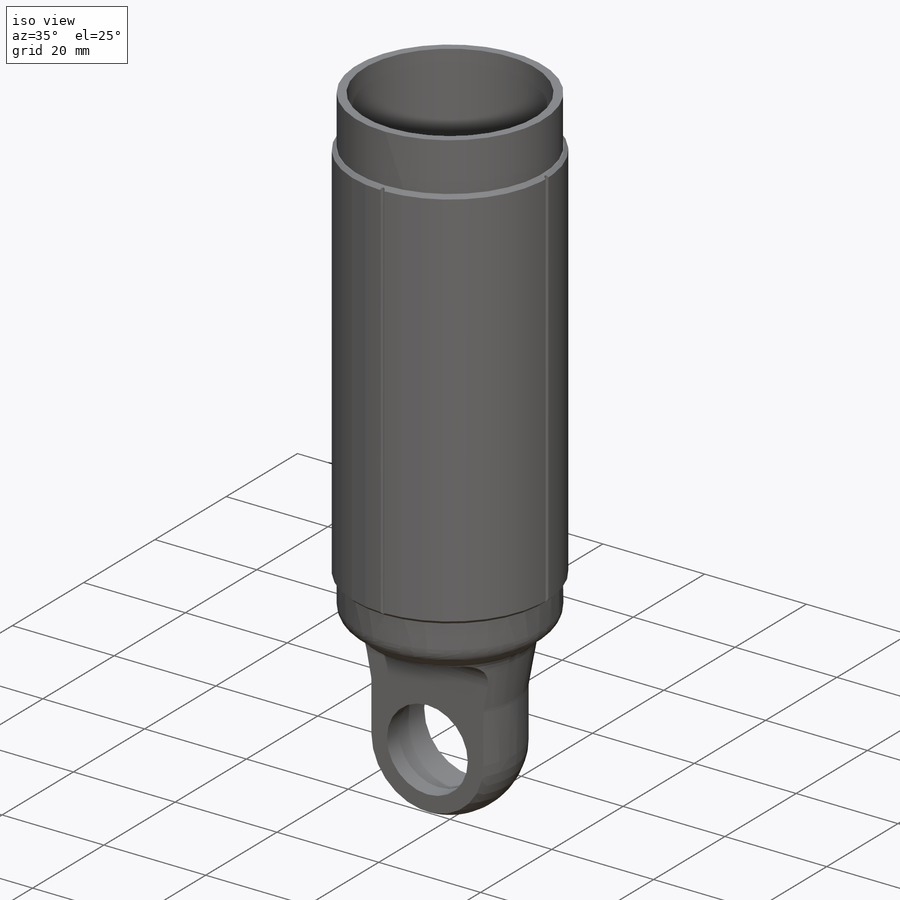
[diagram: iso view]
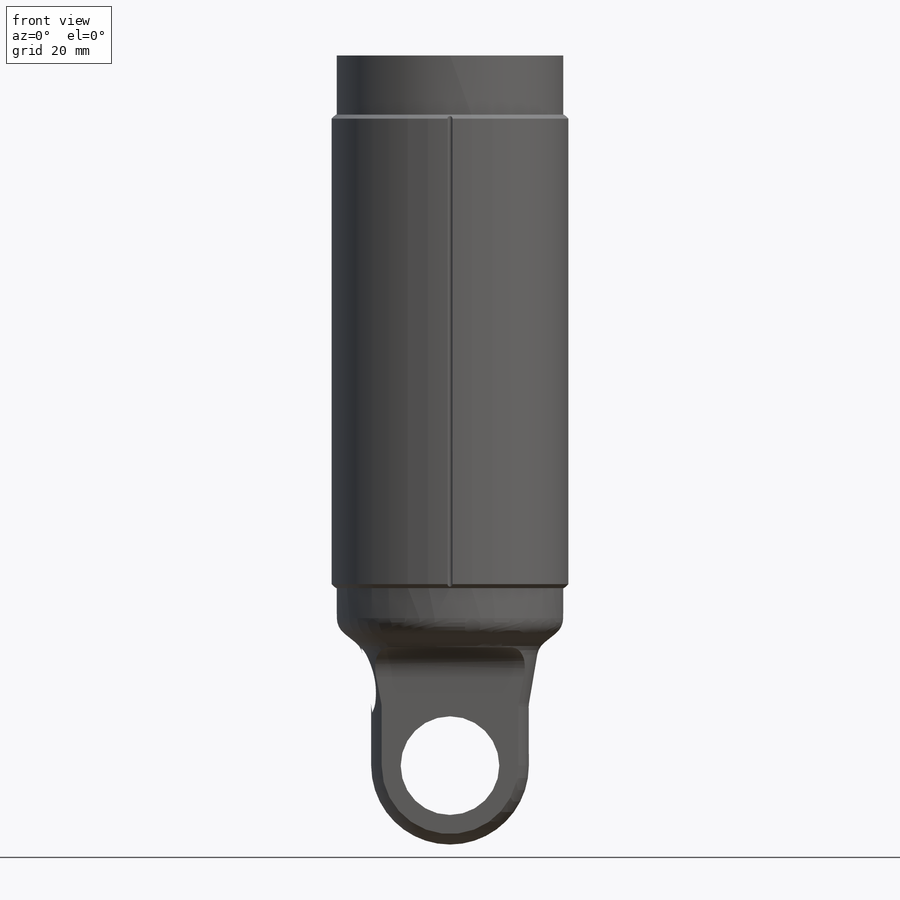
[diagram: front view]
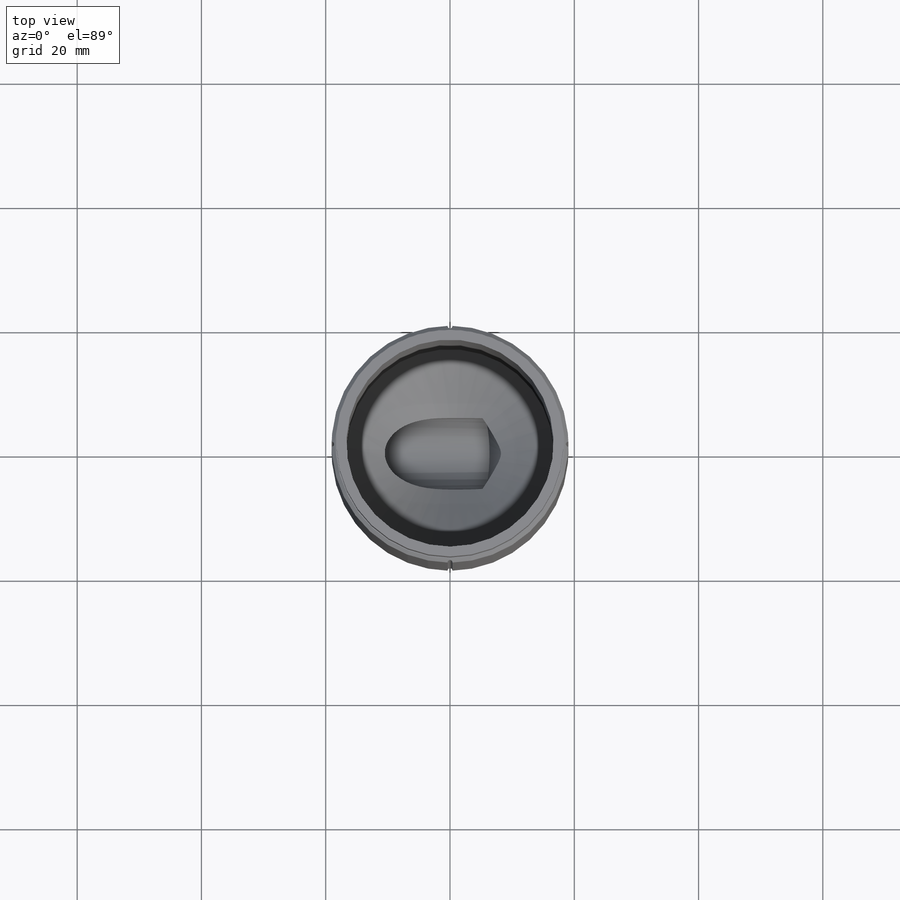
[diagram: top view]
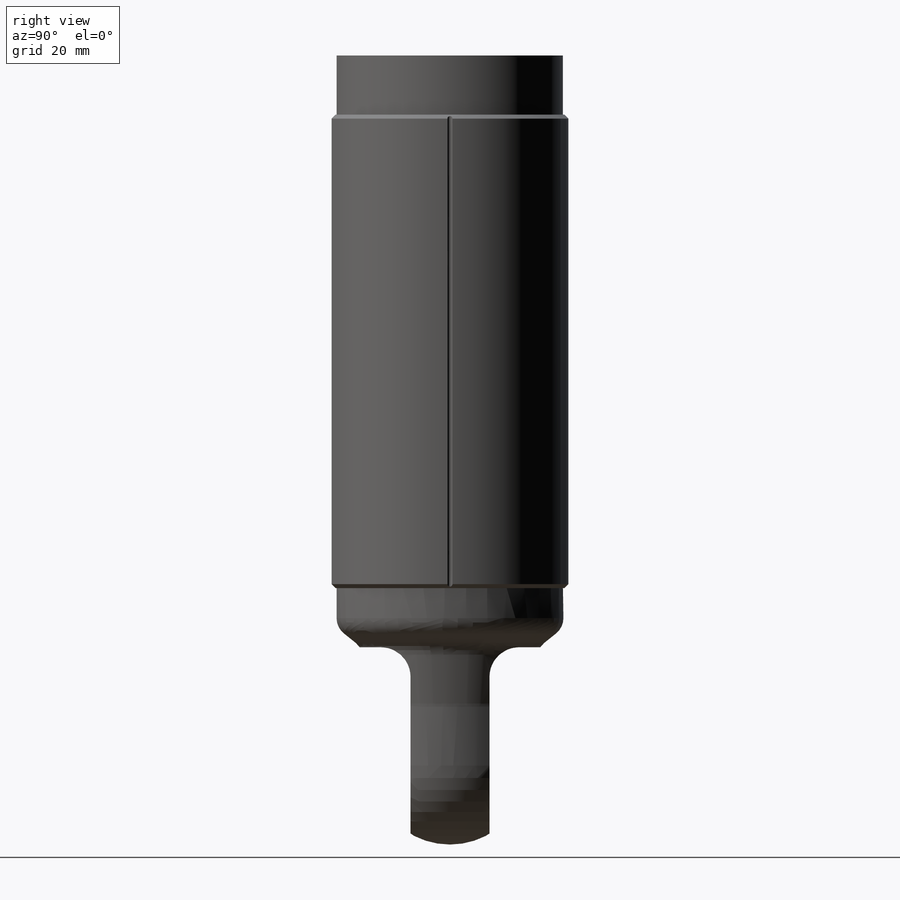
[diagram: right view]
SOLIDWORKS PART (.sldprt)
format: sldprt  version: not decoded by parser v0  size: 433,664 bytes
history: native  units: mm
features: sketch x12, cut_extrude x6, plane x2, material x1, revolve x1, hole x1, cut_revolve x1, pattern_linear x1 (+11 scaffold rows collapsed)
feature tree (36):
  scaffold x11  (default folders/planes/origin — collapsed)
  material  "6061 Alloy"
  sketch  "Sketch1"  dims[c1.D7=25.4mm c1.D12=3.175mm c1.D1=~0.79375mm c1.D2=19.05mm c1.D3=9.525mm c1.D4=76.2mm c1.D5=6.35mm c1.D6=~13.741041mm c2.D6=~7.386043deg c3.D6=14.2875mm c3.D10=114.3mm c3.D11=3.175mm c3.D12=19.05mm]
  revolve  "Revolve1"  Angle=360deg
  sketch  "Sketch4"  dims[D3=4.7625mm D1=12.7mm D2=19.05mm]
  cut_extrude  "Extrude1"  [1 undecoded]
  sketch  "Sketch5"  dims[D1=15.875mm]
  cut_extrude  "Extrude2"  [1 undecoded]
  plane  "Plane1"  Offset=3.175mm
  sketch  "Sketch6"  dims[D1=19.05mm]
  cut_extrude  "Extrude3"  [1 undecoded]
  sketch  "Sketch7"  dims[D1=1.5875mm]
  cut_extrude  "Extrude6"  Depth=3.175mm
  hole  "1/2-20 Tapped Hole1"  Diameter=11.50874mm Depth=19.05mm
  sketch  "3DSketch1"  dims[D1=6.35mm D2=6.35mm D3=6.35mm]
  sketch  "Sketch9"  dims[hole-wizard template sketch: 46 standard entries collapsed; hole parameters kept: c15.Tap Drill Dia.=~11.50874mm c15.Tap Drill Depth=19.05mm c15.D3=~14.816244mm c15.Drill Angle=118.0deg]
  plane  "Plane3"
  sketch  "Sketch14"
  cut_extrude  "Cut-Extrude1"  [1 undecoded]
  sketch  "Sketch10"  dims[D1=~0.79375mm]
  cut_extrude  "Extrude7"  [1 undecoded]
  sketch  "3DSketch2"
  sketch  "Sketch11"  dims[D1=~0.79375mm]
  cut_revolve  "Cut-Revolve2"  Angle=360deg
  pattern_linear  "LPattern1"  Count1=95 Count2=1 Spacing1=0.79375mm Spacing2=2.54mm
  sketch  "3DSketch3"
decode coverage: 14 of 22 modeling features carry decoded parameters
note: ~ marks probable driven/reference dimensions
note: 5 parameter values undecoded
summary: no parameter record found for 5 features
note: suppression state not decoded; provenance and decode notes live in map.json
